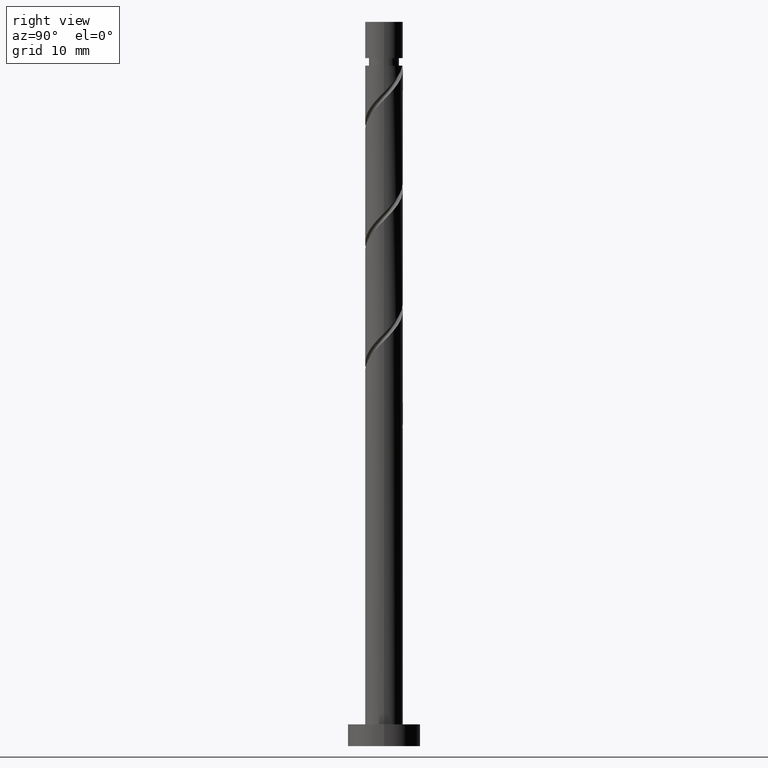
[diagram: clean part render]
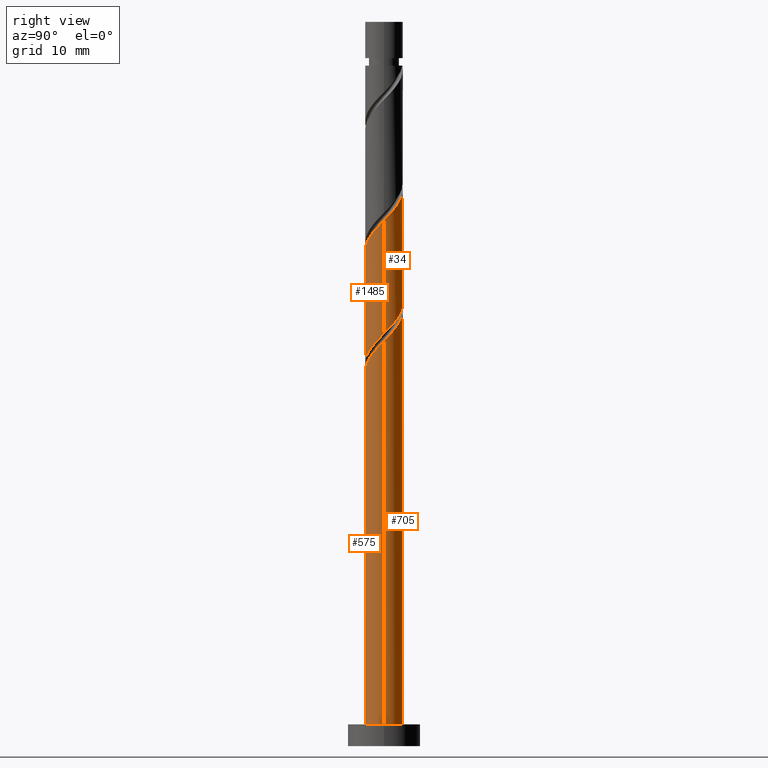
[diagram: same view with one multi-face feature highlighted, each face labeled with its STEP entity id]
A machine part, right view. The highlighted faces form ONE feature: a constant-radius fillet chain: 4 tangent blend faces with common blend radius 2.6 mm. The faces share edges in the B-rep.
Their STEP definitions:
[1] entity #705 (Cylinder):
#4 = AXIS2_PLACEMENT_3D ( 'NONE', #1369, #827, #1165 ) ;
#12 = CARTESIAN_POINT ( 'NONE',  ( -1.947935995195028358, 1.722075886429966785, 46.73729564791317159 ) ) ;
#23 = CARTESIAN_POINT ( 'NONE',  ( -2.600000000000000089, 0.000000000000000000, 100.0000000000000000 ) ) ;
#31 = CARTESIAN_POINT ( 'NONE',  ( -2.600000000000000533, -1.292220606306313636E-15, 48.65703942512414670 ) ) ;
#36 = CARTESIAN_POINT ( 'NONE',  ( -2.600000000000003642, 1.960739359279797311E-15, 64.26199631514663224 ) ) ;
#38 = CARTESIAN_POINT ( 'NONE',  ( -2.600000000000000533, 0.03354435326325422989, 48.62302205119178922 ) ) ;
#42 = CARTESIAN_POINT ( 'NONE',  ( 1.644287553589981909, 2.065549559076047981, 58.31136972198722646 ) ) ;
#49 = EDGE_CURVE ( 'NONE', #118, #182, #826, .T. ) ;
#58 = CARTESIAN_POINT ( 'NONE',  ( 2.419445721942482752, 0.9519886546457586585, 56.92248083309835494 ) ) ;
#78 = CARTESIAN_POINT ( 'NONE',  ( -1.241476438953567740, 2.284455351177424376, 45.81136972198724067 ) ) ;
#104 = EDGE_CURVE ( 'NONE', #182, #795, #152, .T. ) ;
#109 = CARTESIAN_POINT ( 'NONE',  ( -2.600000000000000533, -1.292220606306313636E-15, 48.65703942512414670 ) ) ;
#118 = VERTEX_POINT ( 'NONE', #943 ) ;
#127 = FACE_OUTER_BOUND ( 'NONE', #443, .T. ) ;
#135 = CYLINDRICAL_SURFACE ( 'NONE', #4, 2.600000000000000089 ) ;
#152 = LINE ( 'NONE', #23, #1049 ) ;
#156 = CARTESIAN_POINT ( 'NONE',  ( -2.465329462490475354, 0.8259241135700358116, 63.40396231457984300 ) ) ;
#158 = CARTESIAN_POINT ( 'NONE',  ( -2.465329462490475354, 0.8259241135700358116, 46.73729564791317870 ) ) ;
#162 = CARTESIAN_POINT ( 'NONE',  ( 0.5173934672954431102, 2.548000000000000931, 43.95951787013538592 ) ) ;
#181 = DIRECTION ( 'NONE',  ( 0.000000000000000000, 1.000000000000000000, -1.334402673828313162E-14 ) ) ;
#182 = VERTEX_POINT ( 'NONE', #1404 ) ;
#268 = VERTEX_POINT ( 'NONE', #162 ) ;
#269 = DIRECTION ( 'NONE',  ( 1.000000000000000000, 0.000000000000000000, 0.000000000000000000 ) ) ;
#274 = CARTESIAN_POINT ( 'NONE',  ( -0.5173934672954421110, 2.548000000000004039, 43.95951787013538592 ) ) ;
#279 = CARTESIAN_POINT ( 'NONE',  ( -2.319696757250354846, 1.260628214142603731, 62.94099935161687398 ) ) ;
#301 = CARTESIAN_POINT ( 'NONE',  ( 0.3852765019334445928, 2.571295785602650152, 59.70025861087612640 ) ) ;
#309 = CARTESIAN_POINT ( 'NONE',  ( -1.644287553589979023, 2.065549559076044872, 46.27433268495019547 ) ) ;
#342 = EDGE_CURVE ( 'NONE', #760, #1339, #1314, .T. ) ;
#384 = CARTESIAN_POINT ( 'NONE',  ( -1.357658148454168101, 2.217377809922346454, 44.88544379606130263 ) ) ;
#390 = CARTESIAN_POINT ( 'NONE',  ( -2.587307007084879373, 0.5253750955076291751, 48.12618453680204311 ) ) ;
#391 = DIRECTION ( 'NONE',  ( -0.000000000000000000, -0.000000000000000000, -1.000000000000000000 ) ) ;
#394 = AXIS2_PLACEMENT_3D ( 'NONE', #1393, #917, #269 ) ;
#397 = CARTESIAN_POINT ( 'NONE',  ( 1.241476438953571071, 2.284455351177427040, 58.77433268495020258 ) ) ;
#402 = CARTESIAN_POINT ( 'NONE',  ( 0.000000000000000000, 0.000000000000000000, 43.95951787013542145 ) ) ;
#414 = CARTESIAN_POINT ( 'NONE',  ( 1.947935995195031911, 1.722075886429968783, 57.84840675902427876 ) ) ;
#423 = CARTESIAN_POINT ( 'NONE',  ( -1.748641682767723582, 1.977986047771178146, 62.01507342569094305 ) ) ;
#442 = CARTESIAN_POINT ( 'NONE',  ( 2.600000000000003642, -1.990617292373584730E-15, 55.92866298181330365 ) ) ;
#443 = EDGE_LOOP ( 'NONE', ( #963, #953, #752, #1252, #905, #553, #1268, #630 ) ) ;
#453 =( BOUNDED_CURVE ( )  B_SPLINE_CURVE ( 2, ( #1069, #844, #1084, #859, #58, #1416, #414, #42, #397, #980, #301, #642, #1435, #1092, #987, #423, #876, #279, #156, #618, #36 ),
 .UNSPECIFIED., .F., .T. ) 
 B_SPLINE_CURVE_WITH_KNOTS ( ( 3, 2, 2, 2, 2, 2, 2, 2, 2, 2, 3 ),
 ( 0.1795248053855288128, 0.1805555555555555802, 0.1944444444444444198, 0.2083333333333333703, 0.2222222222222222099, 0.2361111111111111605, 0.2500000000000000000, 0.2638888888888888395, 0.2777777777777777901, 0.2916666666666666297, 0.3045248053855287851 ),
 .UNSPECIFIED. ) 
 CURVE ( )  GEOMETRIC_REPRESENTATION_ITEM ( )  RATIONAL_B_SPLINE_CURVE ( ( 0.9071930855141261407, 0.9080659294509738633, 0.9090909090909141677, 0.8952797754656487417, 0.9090909090909141677, 0.8952797754656487417, 0.9090909090909141677, 0.8952797754656487417, 0.9090909090909141677, 0.8952797754656487417, 0.9090909090909141677, 0.8952797754656487417, 0.9090909090909141677, 0.8952797754656487417, 0.9090909090909141677, 0.8952797754656487417, 0.9090909090909141677, 0.8952797754656487417, 0.9090909090909141677, 0.8963047551055891571, 0.9071930855141259187 ) ) 
 REPRESENTATION_ITEM ( '' )  );
#480 = VECTOR ( 'NONE', #878, 1000.000000000000000 ) ;
#506 = CARTESIAN_POINT ( 'NONE',  ( -2.600000000000002753, 0.4239413667331912716, 47.16541013611433897 ) ) ;
#533 = EDGE_CURVE ( 'NONE', #1245, #760, #453, .T. ) ;
#553 = ORIENTED_EDGE ( 'NONE', *, *, #1137, .T. ) ;
#591 = CARTESIAN_POINT ( 'NONE',  ( -2.251584436800076805, 1.378602213783888697, 47.20025861087611929 ) ) ;
#612 = EDGE_CURVE ( 'NONE', #697, #795, #1465, .T. ) ;
#613 = CARTESIAN_POINT ( 'NONE',  ( -0.9666746141406121762, 2.456769572073515651, 44.42248083309834072 ) ) ;
#618 = CARTESIAN_POINT ( 'NONE',  ( -2.600000000000000533, 0.4239413667331974334, 63.83207680278099616 ) ) ;
#630 = ORIENTED_EDGE ( 'NONE', *, *, #342, .F. ) ;
#642 = CARTESIAN_POINT ( 'NONE',  ( -0.06811232045027318383, 2.639230427926492428, 60.16322157383910252 ) ) ;
#653 = EDGE_CURVE ( 'NONE', #1245, #697, #724, .T. ) ;
#692 = CARTESIAN_POINT ( 'NONE',  ( -2.600000000000003642, 1.960739359279797311E-15, 64.26199631514663224 ) ) ;
#697 = VERTEX_POINT ( 'NONE', #1359 ) ;
#705 = ADVANCED_FACE ( 'NONE', ( #127 ), #135, .T. ) ;
#721 = CARTESIAN_POINT ( 'NONE',  ( -2.034169220009039769, 1.619307130956890495, 45.81136972198725488 ) ) ;
#724 = LINE ( 'NONE', #818, #1228 ) ;
#752 = ORIENTED_EDGE ( 'NONE', *, *, #612, .T. ) ;
#758 = CARTESIAN_POINT ( 'NONE',  ( -2.600000000000000089, 0.000000000000000000, 100.0000000000000000 ) ) ;
#760 = VERTEX_POINT ( 'NONE', #692 ) ;
#795 = VERTEX_POINT ( 'NONE', #1292 ) ;
#817 =( BOUNDED_CURVE ( )  B_SPLINE_CURVE ( 2, ( #31, #38, #1410, #390, #1155, #591, #12, #309, #78, #1190, #1003, #1141, #1363 ),
 .UNSPECIFIED., .F., .T. ) 
 B_SPLINE_CURVE_WITH_KNOTS ( ( 3, 2, 2, 2, 2, 2, 3 ),
 ( 0.9295248053855290626, 0.9305555555555555802, 0.9444444444444444198, 0.9583333333333333703, 0.9722222222222222099, 0.9861111111111111605, 1.000000000000000000 ),
 .UNSPECIFIED. ) 
 CURVE ( )  GEOMETRIC_REPRESENTATION_ITEM ( )  RATIONAL_B_SPLINE_CURVE ( ( 0.9071930855141200345, 0.9080659294509676460, 0.9090909090909077284, 0.8952797754656424134, 0.9090909090909077284, 0.8952797754656424134, 0.9090909090909077284, 0.8952797754656424134, 0.9090909090909077284, 0.8952797754656424134, 0.9090909090909077284, 0.8952797754656424134, 0.9090909090909077284 ) ) 
 REPRESENTATION_ITEM ( '' )  );
#818 = CARTESIAN_POINT ( 'NONE',  ( 2.600000000000000089, 3.184081677783117698E-16, 100.0000000000000000 ) ) ;
#826 =( BOUNDED_CURVE ( )  B_SPLINE_CURVE ( 2, ( #274, #613, #384, #831, #721, #1411, #158, #506, #1177 ),
 .UNSPECIFIED., .F., .T. ) 
 B_SPLINE_CURVE_WITH_KNOTS ( ( 3, 2, 2, 2, 3 ),
 ( 0.000000000000000000, 0.01388888888888883955, 0.02777777777777779011, 0.04166666666666662966, 0.05452480538552897937 ),
 .UNSPECIFIED. ) 
 CURVE ( )  GEOMETRIC_REPRESENTATION_ITEM ( )  RATIONAL_B_SPLINE_CURVE ( ( 0.9090909090909141677, 0.8952797754656487417, 0.9090909090909141677, 0.8952797754656487417, 0.9090909090909141677, 0.8952797754656487417, 0.9090909090909141677, 0.8963047551055888240, 0.9071930855141263628 ) ) 
 REPRESENTATION_ITEM ( '' )  );
#827 = DIRECTION ( 'NONE',  ( -0.000000000000000000, -0.000000000000000000, -1.000000000000000000 ) ) ;
#831 = CARTESIAN_POINT ( 'NONE',  ( -1.748641682767723582, 1.977986047771178146, 45.34840675902426455 ) ) ;
#844 = CARTESIAN_POINT ( 'NONE',  ( 2.600000000000003642, 0.03354435326324555627, 55.96268035574565403 ) ) ;
#859 = CARTESIAN_POINT ( 'NONE',  ( 2.587307007084882926, 0.5253750955076290641, 56.45951787013540013 ) ) ;
#876 = CARTESIAN_POINT ( 'NONE',  ( -2.034169220009039769, 1.619307130956890495, 62.47803638865390496 ) ) ;
#878 = DIRECTION ( 'NONE',  ( -0.000000000000000000, -0.000000000000000000, -1.000000000000000000 ) ) ;
#905 = ORIENTED_EDGE ( 'NONE', *, *, #49, .F. ) ;
#917 = DIRECTION ( 'NONE',  ( 0.000000000000000000, 0.000000000000000000, 1.000000000000000000 ) ) ;
#943 = CARTESIAN_POINT ( 'NONE',  ( -0.5173934672954421110, 2.548000000000004039, 43.95951787013538592 ) ) ;
#947 = CIRCLE ( 'NONE', #992, 2.600000000000000089 ) ;
#953 = ORIENTED_EDGE ( 'NONE', *, *, #653, .T. ) ;
#963 = ORIENTED_EDGE ( 'NONE', *, *, #533, .F. ) ;
#980 = CARTESIAN_POINT ( 'NONE',  ( 0.8386653243171597882, 2.503361143278807432, 59.23729564791315028 ) ) ;
#987 = CARTESIAN_POINT ( 'NONE',  ( -1.357658148454168101, 2.217377809922346454, 61.55211046272798825 ) ) ;
#992 = AXIS2_PLACEMENT_3D ( 'NONE', #402, #1104, #181 ) ;
#1003 = CARTESIAN_POINT ( 'NONE',  ( -0.3852765019334414842, 2.571295785602647044, 44.88544379606130974 ) ) ;
#1049 = VECTOR ( 'NONE', #391, 1000.000000000000000 ) ;
#1069 = CARTESIAN_POINT ( 'NONE',  ( 2.600000000000003642, -1.990617292373584730E-15, 55.92866298181330365 ) ) ;
#1084 = CARTESIAN_POINT ( 'NONE',  ( 2.599134587407737840, 0.06707754125508115506, 55.99655490717243822 ) ) ;
#1092 = CARTESIAN_POINT ( 'NONE',  ( -0.9666746141406121762, 2.456769572073515651, 61.08914749976502634 ) ) ;
#1104 = DIRECTION ( 'NONE',  ( -2.962969145211131058E-30, -1.334402673828313635E-14, -1.000000000000000000 ) ) ;
#1137 = EDGE_CURVE ( 'NONE', #118, #268, #947, .T. ) ;
#1141 = CARTESIAN_POINT ( 'NONE',  ( 0.06811232045027358628, 2.639230427926489764, 44.42248083309834072 ) ) ;
#1155 = CARTESIAN_POINT ( 'NONE',  ( -2.419445721942478755, 0.9519886546457586585, 47.66322157383908120 ) ) ;
#1165 = DIRECTION ( 'NONE',  ( -1.000000000000000000, 0.000000000000000000, 0.000000000000000000 ) ) ;
#1173 = DIRECTION ( 'NONE',  ( -0.000000000000000000, -0.000000000000000000, -1.000000000000000000 ) ) ;
#1177 = CARTESIAN_POINT ( 'NONE',  ( -2.600000000000003642, 1.960739359279797311E-15, 47.59532964847995373 ) ) ;
#1190 = CARTESIAN_POINT ( 'NONE',  ( -0.8386653243171563465, 2.503361143278803880, 45.34840675902426455 ) ) ;
#1228 = VECTOR ( 'NONE', #1173, 1000.000000000000000 ) ;
#1245 = VERTEX_POINT ( 'NONE', #442 ) ;
#1252 = ORIENTED_EDGE ( 'NONE', *, *, #104, .F. ) ;
#1268 = ORIENTED_EDGE ( 'NONE', *, *, #1328, .F. ) ;
#1292 = CARTESIAN_POINT ( 'NONE',  ( -2.600000000000000089, 0.000000000000000000, 3.000000000000000000 ) ) ;
#1314 = LINE ( 'NONE', #758, #480 ) ;
#1328 = EDGE_CURVE ( 'NONE', #1339, #268, #817, .T. ) ;
#1339 = VERTEX_POINT ( 'NONE', #109 ) ;
#1359 = CARTESIAN_POINT ( 'NONE',  ( 2.600000000000000089, 3.184081677783117698E-16, 3.000000000000000000 ) ) ;
#1363 = CARTESIAN_POINT ( 'NONE',  ( 0.5173934672954431102, 2.548000000000000931, 43.95951787013537881 ) ) ;
#1369 = CARTESIAN_POINT ( 'NONE',  ( 0.000000000000000000, 0.000000000000000000, 100.0000000000000000 ) ) ;
#1393 = CARTESIAN_POINT ( 'NONE',  ( 0.000000000000000000, 0.000000000000000000, 3.000000000000000000 ) ) ;
#1404 = CARTESIAN_POINT ( 'NONE',  ( -2.600000000000003642, 1.960739359279797311E-15, 47.59532964847995373 ) ) ;
#1410 = CARTESIAN_POINT ( 'NONE',  ( -2.599134587407734731, 0.06707754125508150200, 48.58914749976501213 ) ) ;
#1411 = CARTESIAN_POINT ( 'NONE',  ( -2.319696757250354846, 1.260628214142603731, 46.27433268495020258 ) ) ;
#1416 = CARTESIAN_POINT ( 'NONE',  ( 2.251584436800082134, 1.378602213783888475, 57.38544379606130974 ) ) ;
#1435 = CARTESIAN_POINT ( 'NONE',  ( -0.5173934672954421110, 2.548000000000004039, 60.62618453680206443 ) ) ;
#1465 = CIRCLE ( 'NONE', #394, 2.600000000000000089 ) ;
[2] entity #575 (Cylinder):
#9 = CARTESIAN_POINT ( 'NONE',  ( -1.947935995195032133, -1.722075886429968117, 49.51507342569093595 ) ) ;
#23 = CARTESIAN_POINT ( 'NONE',  ( -2.600000000000000089, 0.000000000000000000, 100.0000000000000000 ) ) ;
#76 = DIRECTION ( 'NONE',  ( 1.000000000000000000, 0.000000000000000000, 0.000000000000000000 ) ) ;
#104 = EDGE_CURVE ( 'NONE', #182, #795, #152, .T. ) ;
#152 = LINE ( 'NONE', #23, #1049 ) ;
#176 = AXIS2_PLACEMENT_3D ( 'NONE', #1250, #212, #76 ) ;
#182 = VERTEX_POINT ( 'NONE', #1404 ) ;
#185 = CARTESIAN_POINT ( 'NONE',  ( 2.319696757250354846, -1.260628214142604619, 54.60766601828352407 ) ) ;
#197 = ORIENTED_EDGE ( 'NONE', *, *, #653, .F. ) ;
#212 = DIRECTION ( 'NONE',  ( 0.000000000000000000, 0.000000000000000000, 1.000000000000000000 ) ) ;
#216 = EDGE_LOOP ( 'NONE', ( #197, #305, #1484, #467 ) ) ;
#285 = CARTESIAN_POINT ( 'NONE',  ( -0.3852765019334429275, -2.571295785602650152, 51.36692527754281201 ) ) ;
#305 = ORIENTED_EDGE ( 'NONE', *, *, #510, .F. ) ;
#391 = DIRECTION ( 'NONE',  ( -0.000000000000000000, -0.000000000000000000, -1.000000000000000000 ) ) ;
#406 = CARTESIAN_POINT ( 'NONE',  ( 2.600000000000003642, -1.990617292373584730E-15, 55.92866298181330365 ) ) ;
#438 = AXIS2_PLACEMENT_3D ( 'NONE', #698, #1149, #1159 ) ;
#442 = CARTESIAN_POINT ( 'NONE',  ( 2.600000000000003642, -1.990617292373584730E-15, 55.92866298181330365 ) ) ;
#467 = ORIENTED_EDGE ( 'NONE', *, *, #1451, .T. ) ;
#510 = EDGE_CURVE ( 'NONE', #182, #1245, #670, .T. ) ;
#511 = CARTESIAN_POINT ( 'NONE',  ( 2.465329462490475354, -0.8259241135700365888, 55.07062898124651440 ) ) ;
#575 = ADVANCED_FACE ( 'NONE', ( #933 ), #924, .T. ) ;
#588 = CARTESIAN_POINT ( 'NONE',  ( -2.251584436800082134, -1.378602213783890029, 49.05211046272798114 ) ) ;
#626 = CARTESIAN_POINT ( 'NONE',  ( 0.06811232045027239279, -2.639230427926493316, 51.82988824050575971 ) ) ;
#653 = EDGE_CURVE ( 'NONE', #1245, #697, #724, .T. ) ;
#670 =( BOUNDED_CURVE ( )  B_SPLINE_CURVE ( 2, ( #808, #1061, #834, #926, #1150, #588, #9, #1195, #1311, #1293, #285, #626, #756, #1408, #972, #1189, #868, #185, #511, #1076, #406 ),
 .UNSPECIFIED., .F., .T. ) 
 B_SPLINE_CURVE_WITH_KNOTS ( ( 3, 2, 2, 2, 2, 2, 2, 2, 2, 2, 3 ),
 ( 0.05452480538552897937, 0.05555555555555558023, 0.06944444444444441977, 0.08333333333333337034, 0.09722222222222220989, 0.1111111111111111605, 0.1250000000000000000, 0.1388888888888888395, 0.1527777777777777901, 0.1666666666666666297, 0.1795248053855288128 ),
 .UNSPECIFIED. ) 
 CURVE ( )  GEOMETRIC_REPRESENTATION_ITEM ( )  RATIONAL_B_SPLINE_CURVE ( ( 0.9071930855141263628, 0.9080659294509740853, 0.9090909090909141677, 0.8952797754656487417, 0.9090909090909141677, 0.8952797754656487417, 0.9090909090909141677, 0.8952797754656487417, 0.9090909090909141677, 0.8952797754656487417, 0.9090909090909141677, 0.8952797754656487417, 0.9090909090909141677, 0.8952797754656487417, 0.9090909090909141677, 0.8952797754656487417, 0.9090909090909141677, 0.8952797754656487417, 0.9090909090909141677, 0.8963047551055891571, 0.9071930855141261407 ) ) 
 REPRESENTATION_ITEM ( '' )  );
#697 = VERTEX_POINT ( 'NONE', #1359 ) ;
#698 = CARTESIAN_POINT ( 'NONE',  ( 0.000000000000000000, 0.000000000000000000, 100.0000000000000000 ) ) ;
#724 = LINE ( 'NONE', #818, #1228 ) ;
#756 = CARTESIAN_POINT ( 'NONE',  ( 0.5173934672954424441, -2.548000000000004039, 52.29285120346872162 ) ) ;
#795 = VERTEX_POINT ( 'NONE', #1292 ) ;
#808 = CARTESIAN_POINT ( 'NONE',  ( -2.600000000000003642, 1.960739359279797311E-15, 47.59532964847995373 ) ) ;
#818 = CARTESIAN_POINT ( 'NONE',  ( 2.600000000000000089, 3.184081677783117698E-16, 100.0000000000000000 ) ) ;
#834 = CARTESIAN_POINT ( 'NONE',  ( -2.599134587407737840, -0.06707754125508093301, 47.66322157383908831 ) ) ;
#868 = CARTESIAN_POINT ( 'NONE',  ( 2.034169220009039769, -1.619307130956890495, 54.14470305532056926 ) ) ;
#924 = CYLINDRICAL_SURFACE ( 'NONE', #438, 2.600000000000000089 ) ;
#926 = CARTESIAN_POINT ( 'NONE',  ( -2.587307007084882926, -0.5253750955076293971, 48.12618453680205732 ) ) ;
#933 = FACE_OUTER_BOUND ( 'NONE', #216, .T. ) ;
#972 = CARTESIAN_POINT ( 'NONE',  ( 1.357658148454168101, -2.217377809922346454, 53.21877712939465255 ) ) ;
#1049 = VECTOR ( 'NONE', #391, 1000.000000000000000 ) ;
#1061 = CARTESIAN_POINT ( 'NONE',  ( -2.600000000000003642, -0.03354435326325089922, 47.62934702241230411 ) ) ;
#1076 = CARTESIAN_POINT ( 'NONE',  ( 2.600000000000000533, -0.4239413667331979885, 55.49874346944766756 ) ) ;
#1149 = DIRECTION ( 'NONE',  ( -0.000000000000000000, -0.000000000000000000, -1.000000000000000000 ) ) ;
#1150 = CARTESIAN_POINT ( 'NONE',  ( -2.419445721942482308, -0.9519886546457594356, 48.58914749976501923 ) ) ;
#1159 = DIRECTION ( 'NONE',  ( -1.000000000000000000, 0.000000000000000000, 0.000000000000000000 ) ) ;
#1160 = CIRCLE ( 'NONE', #176, 2.600000000000000089 ) ;
#1173 = DIRECTION ( 'NONE',  ( -0.000000000000000000, -0.000000000000000000, -1.000000000000000000 ) ) ;
#1189 = CARTESIAN_POINT ( 'NONE',  ( 1.748641682767723582, -1.977986047771178590, 53.68174009235762156 ) ) ;
#1195 = CARTESIAN_POINT ( 'NONE',  ( -1.644287553589981687, -2.065549559076047981, 49.97803638865391207 ) ) ;
#1228 = VECTOR ( 'NONE', #1173, 1000.000000000000000 ) ;
#1245 = VERTEX_POINT ( 'NONE', #442 ) ;
#1250 = CARTESIAN_POINT ( 'NONE',  ( 0.000000000000000000, 0.000000000000000000, 3.000000000000000000 ) ) ;
#1292 = CARTESIAN_POINT ( 'NONE',  ( -2.600000000000000089, 0.000000000000000000, 3.000000000000000000 ) ) ;
#1293 = CARTESIAN_POINT ( 'NONE',  ( -0.8386653243171581229, -2.503361143278807432, 50.90396231457984300 ) ) ;
#1311 = CARTESIAN_POINT ( 'NONE',  ( -1.241476438953570627, -2.284455351177427485, 50.44099935161688109 ) ) ;
#1359 = CARTESIAN_POINT ( 'NONE',  ( 2.600000000000000089, 3.184081677783117698E-16, 3.000000000000000000 ) ) ;
#1404 = CARTESIAN_POINT ( 'NONE',  ( -2.600000000000003642, 1.960739359279797311E-15, 47.59532964847995373 ) ) ;
#1408 = CARTESIAN_POINT ( 'NONE',  ( 0.9666746141406117321, -2.456769572073515651, 52.75581416643166932 ) ) ;
#1451 = EDGE_CURVE ( 'NONE', #795, #697, #1160, .T. ) ;
#1484 = ORIENTED_EDGE ( 'NONE', *, *, #104, .T. ) ;
[3] entity #1485 (Cylinder):
#3 = ORIENTED_EDGE ( 'NONE', *, *, #488, .F. ) ;
#17 = CARTESIAN_POINT ( 'NONE',  ( -1.644287553589981687, -2.065549559076047981, 66.64470305532056216 ) ) ;
#109 = CARTESIAN_POINT ( 'NONE',  ( -2.600000000000000533, -1.292220606306313636E-15, 48.65703942512414670 ) ) ;
#128 = CARTESIAN_POINT ( 'NONE',  ( -2.419445721942482308, -0.9519886546457594356, 65.25581416643167643 ) ) ;
#130 = FACE_OUTER_BOUND ( 'NONE', #1120, .T. ) ;
#148 = CARTESIAN_POINT ( 'NONE',  ( 2.600000000000002309, -0.4239413667331936031, 72.16541013611434607 ) ) ;
#150 = CYLINDRICAL_SURFACE ( 'NONE', #1019, 2.600000000000000089 ) ;
#200 =( BOUNDED_CURVE ( )  B_SPLINE_CURVE ( 2, ( #896, #222, #323, #674, #346, #471, #1475, #911, #573, #1028, #928, #1138, #1226, #1351, #770, #551, #335, #793, #440, #1251, #802 ),
 .UNSPECIFIED., .F., .T. ) 
 B_SPLINE_CURVE_WITH_KNOTS ( ( 3, 2, 2, 2, 2, 2, 2, 2, 2, 2, 3 ),
 ( 0.8045248053855290626, 0.8055555555555555802, 0.8194444444444444198, 0.8333333333333333703, 0.8472222222222222099, 0.8611111111111111605, 0.8750000000000000000, 0.8888888888888888395, 0.9027777777777777901, 0.9166666666666666297, 0.9295248053855290626 ),
 .UNSPECIFIED. ) 
 CURVE ( )  GEOMETRIC_REPRESENTATION_ITEM ( )  RATIONAL_B_SPLINE_CURVE ( ( 0.9071930855141200345, 0.9080659294509676460, 0.9090909090909077284, 0.8952797754656424134, 0.9090909090909077284, 0.8952797754656424134, 0.9090909090909077284, 0.8952797754656424134, 0.9090909090909077284, 0.8952797754656424134, 0.9090909090909077284, 0.8952797754656424134, 0.9090909090909077284, 0.8952797754656424134, 0.9090909090909077284, 0.8952797754656424134, 0.9090909090909077284, 0.8952797754656424134, 0.9090909090909077284, 0.8963047551055824957, 0.9071930855141200345 ) ) 
 REPRESENTATION_ITEM ( '' )  );
#206 = LINE ( 'NONE', #663, #1275 ) ;
#222 = CARTESIAN_POINT ( 'NONE',  ( 2.600000000000000533, -0.03354435326325524297, 56.95635538452513202 ) ) ;
#240 = DIRECTION ( 'NONE',  ( -0.000000000000000000, -0.000000000000000000, -1.000000000000000000 ) ) ;
#245 = CARTESIAN_POINT ( 'NONE',  ( -2.600000000000003642, 1.960739359279797311E-15, 64.26199631514663224 ) ) ;
#323 = CARTESIAN_POINT ( 'NONE',  ( 2.599134587407734731, -0.06707754125508245957, 56.92248083309836915 ) ) ;
#335 = CARTESIAN_POINT ( 'NONE',  ( -2.034169220009037105, -1.619307130956887830, 50.44099935161688109 ) ) ;
#342 = EDGE_CURVE ( 'NONE', #760, #1339, #1314, .T. ) ;
#346 = CARTESIAN_POINT ( 'NONE',  ( 2.419445721942478755, -0.9519886546457584364, 55.99655490717243111 ) ) ;
#348 = VERTEX_POINT ( 'NONE', #1214 ) ;
#363 =( BOUNDED_CURVE ( )  B_SPLINE_CURVE ( 2, ( #245, #1401, #597, #1167, #128, #1047, #1288, #17, #828, #603, #1054, #1174, #609, #486, #699, #1387, #367, #491, #1394, #148, #693 ),
 .UNSPECIFIED., .F., .T. ) 
 B_SPLINE_CURVE_WITH_KNOTS ( ( 3, 2, 2, 2, 2, 2, 2, 2, 2, 2, 3 ),
 ( 0.3045248053855287851, 0.3055555555555555802, 0.3194444444444444198, 0.3333333333333333703, 0.3472222222222222099, 0.3611111111111111605, 0.3750000000000000000, 0.3888888888888888395, 0.4027777777777777901, 0.4166666666666666297, 0.4295248053855289516 ),
 .UNSPECIFIED. ) 
 CURVE ( )  GEOMETRIC_REPRESENTATION_ITEM ( )  RATIONAL_B_SPLINE_CURVE ( ( 0.9071930855141259187, 0.9080659294509737522, 0.9090909090909141677, 0.8952797754656487417, 0.9090909090909141677, 0.8952797754656487417, 0.9090909090909141677, 0.8952797754656487417, 0.9090909090909141677, 0.8952797754656487417, 0.9090909090909141677, 0.8952797754656487417, 0.9090909090909141677, 0.8952797754656487417, 0.9090909090909141677, 0.8952797754656487417, 0.9090909090909141677, 0.8952797754656487417, 0.9090909090909141677, 0.8963047551055889350, 0.9071930855141262517 ) ) 
 REPRESENTATION_ITEM ( '' )  );
#367 = CARTESIAN_POINT ( 'NONE',  ( 2.034169220009039769, -1.619307130956890495, 70.81136972198723356 ) ) ;
#440 = CARTESIAN_POINT ( 'NONE',  ( -2.465329462490470469, -0.8259241135700331471, 49.51507342569095016 ) ) ;
#471 = CARTESIAN_POINT ( 'NONE',  ( 2.251584436800076805, -1.378602213783889585, 55.53359194420946210 ) ) ;
#480 = VECTOR ( 'NONE', #878, 1000.000000000000000 ) ;
#486 = CARTESIAN_POINT ( 'NONE',  ( 0.9666746141406117321, -2.456769572073515651, 69.42248083309833362 ) ) ;
#488 = EDGE_CURVE ( 'NONE', #760, #348, #363, .T. ) ;
#491 = CARTESIAN_POINT ( 'NONE',  ( 2.319696757250354846, -1.260628214142604619, 71.27433268495022389 ) ) ;
#499 = CARTESIAN_POINT ( 'NONE',  ( 0.000000000000000000, 0.000000000000000000, 100.0000000000000000 ) ) ;
#546 = ORIENTED_EDGE ( 'NONE', *, *, #342, .T. ) ;
#551 = CARTESIAN_POINT ( 'NONE',  ( -1.748641682767721361, -1.977986047771174816, 50.90396231457982879 ) ) ;
#573 = CARTESIAN_POINT ( 'NONE',  ( 1.241476438953567740, -2.284455351177424376, 54.14470305532058347 ) ) ;
#597 = CARTESIAN_POINT ( 'NONE',  ( -2.599134587407737840, -0.06707754125508093301, 64.32988824050576682 ) ) ;
#603 = CARTESIAN_POINT ( 'NONE',  ( -0.8386653243171581229, -2.503361143278807432, 67.57062898124650019 ) ) ;
#609 = CARTESIAN_POINT ( 'NONE',  ( 0.5173934672954424441, -2.548000000000004039, 68.95951787013538592 ) ) ;
#611 = DIRECTION ( 'NONE',  ( -1.000000000000000000, 0.000000000000000000, 0.000000000000000000 ) ) ;
#663 = CARTESIAN_POINT ( 'NONE',  ( 2.600000000000000089, 3.184081677783117698E-16, 100.0000000000000000 ) ) ;
#674 = CARTESIAN_POINT ( 'NONE',  ( 2.587307007084879373, -0.5253750955076295082, 56.45951787013538592 ) ) ;
#692 = CARTESIAN_POINT ( 'NONE',  ( -2.600000000000003642, 1.960739359279797311E-15, 64.26199631514663224 ) ) ;
#693 = CARTESIAN_POINT ( 'NONE',  ( 2.600000000000003642, -1.990617292373584730E-15, 72.59532964847997505 ) ) ;
#699 = CARTESIAN_POINT ( 'NONE',  ( 1.357658148454168101, -2.217377809922346454, 69.88544379606133816 ) ) ;
#758 = CARTESIAN_POINT ( 'NONE',  ( -2.600000000000000089, 0.000000000000000000, 100.0000000000000000 ) ) ;
#760 = VERTEX_POINT ( 'NONE', #692 ) ;
#770 = CARTESIAN_POINT ( 'NONE',  ( -1.357658148454167213, -2.217377809922342013, 51.36692527754279780 ) ) ;
#793 = CARTESIAN_POINT ( 'NONE',  ( -2.319696757250351737, -1.260628214142601289, 49.97803638865390496 ) ) ;
#802 = CARTESIAN_POINT ( 'NONE',  ( -2.600000000000000533, -1.292220606306313636E-15, 48.65703942512414670 ) ) ;
#828 = CARTESIAN_POINT ( 'NONE',  ( -1.241476438953570627, -2.284455351177427485, 67.10766601828355249 ) ) ;
#838 = VERTEX_POINT ( 'NONE', #1082 ) ;
#878 = DIRECTION ( 'NONE',  ( -0.000000000000000000, -0.000000000000000000, -1.000000000000000000 ) ) ;
#896 = CARTESIAN_POINT ( 'NONE',  ( 2.600000000000000533, 2.502276896604711082E-16, 56.99037275845748240 ) ) ;
#911 = CARTESIAN_POINT ( 'NONE',  ( 1.644287553589978579, -2.065549559076044872, 54.60766601828352407 ) ) ;
#928 = CARTESIAN_POINT ( 'NONE',  ( 0.3852765019334413732, -2.571295785602647044, 53.21877712939464544 ) ) ;
#1019 = AXIS2_PLACEMENT_3D ( 'NONE', #499, #1176, #611 ) ;
#1028 = CARTESIAN_POINT ( 'NONE',  ( 0.8386653243171557914, -2.503361143278803880, 53.68174009235761446 ) ) ;
#1047 = CARTESIAN_POINT ( 'NONE',  ( -2.251584436800082134, -1.378602213783890029, 65.71877712939465255 ) ) ;
#1054 = CARTESIAN_POINT ( 'NONE',  ( -0.3852765019334429275, -2.571295785602650152, 68.03359194420947631 ) ) ;
#1082 = CARTESIAN_POINT ( 'NONE',  ( 2.600000000000000533, 2.502276896604711082E-16, 56.99037275845748951 ) ) ;
#1112 = ORIENTED_EDGE ( 'NONE', *, *, #1357, .F. ) ;
#1120 = EDGE_LOOP ( 'NONE', ( #1112, #3, #546, #1272 ) ) ;
#1138 = CARTESIAN_POINT ( 'NONE',  ( -0.06811232045027455773, -2.639230427926489764, 52.75581416643167643 ) ) ;
#1167 = CARTESIAN_POINT ( 'NONE',  ( -2.587307007084882926, -0.5253750955076293971, 64.79285120346874294 ) ) ;
#1174 = CARTESIAN_POINT ( 'NONE',  ( 0.06811232045027239279, -2.639230427926493316, 68.49655490717245243 ) ) ;
#1176 = DIRECTION ( 'NONE',  ( -0.000000000000000000, -0.000000000000000000, -1.000000000000000000 ) ) ;
#1214 = CARTESIAN_POINT ( 'NONE',  ( 2.600000000000003642, -1.990617292373584730E-15, 72.59532964847996084 ) ) ;
#1226 = CARTESIAN_POINT ( 'NONE',  ( -0.5173934672954426661, -2.548000000000000931, 52.29285120346872873 ) ) ;
#1251 = CARTESIAN_POINT ( 'NONE',  ( -2.600000000000000533, -0.4239413667331872193, 49.08695893748976857 ) ) ;
#1257 = EDGE_CURVE ( 'NONE', #838, #1339, #200, .T. ) ;
#1272 = ORIENTED_EDGE ( 'NONE', *, *, #1257, .F. ) ;
#1275 = VECTOR ( 'NONE', #240, 1000.000000000000000 ) ;
#1288 = CARTESIAN_POINT ( 'NONE',  ( -1.947935995195032133, -1.722075886429968117, 66.18174009235762867 ) ) ;
#1314 = LINE ( 'NONE', #758, #480 ) ;
#1339 = VERTEX_POINT ( 'NONE', #109 ) ;
#1351 = CARTESIAN_POINT ( 'NONE',  ( -0.9666746141406119541, -2.456769572073511210, 51.82988824050575971 ) ) ;
#1357 = EDGE_CURVE ( 'NONE', #348, #838, #206, .T. ) ;
#1387 = CARTESIAN_POINT ( 'NONE',  ( 1.748641682767723582, -1.977986047771178590, 70.34840675902425744 ) ) ;
#1394 = CARTESIAN_POINT ( 'NONE',  ( 2.465329462490475354, -0.8259241135700365888, 71.73729564791315738 ) ) ;
#1401 = CARTESIAN_POINT ( 'NONE',  ( -2.600000000000003197, -0.03354435326324456401, 64.29601368907898973 ) ) ;
#1475 = CARTESIAN_POINT ( 'NONE',  ( 1.947935995195027692, -1.722075886429967229, 55.07062898124651440 ) ) ;
#1485 = ADVANCED_FACE ( 'NONE', ( #130 ), #150, .T. ) ;
[4] entity #34 (Cylinder):
#28 = CARTESIAN_POINT ( 'NONE',  ( -0.9666746141406121762, 2.456769572073515651, 77.75581416643167643 ) ) ;
#34 = ADVANCED_FACE ( 'NONE', ( #256 ), #1191, .T. ) ;
#37 = CARTESIAN_POINT ( 'NONE',  ( 2.034169220009037549, 1.619307130956887164, 58.77433268495019547 ) ) ;
#45 = CARTESIAN_POINT ( 'NONE',  ( 1.748641682767722250, 1.977986047771173483, 59.23729564791314317 ) ) ;
#88 = AXIS2_PLACEMENT_3D ( 'NONE', #836, #266, #1197 ) ;
#123 = CARTESIAN_POINT ( 'NONE',  ( -2.587307007084879373, 0.5253750955076291751, 64.79285120346871452 ) ) ;
#161 = CARTESIAN_POINT ( 'NONE',  ( 2.465329462490471357, 0.8259241135700340353, 57.84840675902427165 ) ) ;
#167 = VECTOR ( 'NONE', #717, 1000.000000000000000 ) ;
#171 = CARTESIAN_POINT ( 'NONE',  ( 2.600000000000000533, 2.502276896604711082E-16, 56.99037275845748240 ) ) ;
#190 = ORIENTED_EDGE ( 'NONE', *, *, #1115, .F. ) ;
#206 = LINE ( 'NONE', #663, #1275 ) ;
#235 = CARTESIAN_POINT ( 'NONE',  ( 2.251584436800082134, 1.378602213783888475, 74.05211046272796693 ) ) ;
#239 = CARTESIAN_POINT ( 'NONE',  ( 1.357658148454168101, 2.217377809922341125, 59.70025861087613350 ) ) ;
#240 = DIRECTION ( 'NONE',  ( -0.000000000000000000, -0.000000000000000000, -1.000000000000000000 ) ) ;
#248 = CARTESIAN_POINT ( 'NONE',  ( -1.241476438953567740, 2.284455351177424376, 62.47803638865391207 ) ) ;
#252 = CARTESIAN_POINT ( 'NONE',  ( -2.600000000000000089, 0.000000000000000000, 100.0000000000000000 ) ) ;
#253 = CARTESIAN_POINT ( 'NONE',  ( -2.465329462490475354, 0.8259241135700358116, 80.07062898124648598 ) ) ;
#256 = FACE_OUTER_BOUND ( 'NONE', #856, .T. ) ;
#264 =( BOUNDED_CURVE ( )  B_SPLINE_CURVE ( 2, ( #1373, #1154, #720, #123, #355, #803, #1169, #1476, #248, #479, #912, #1383, #821, #1260, #239, #45, #37, #505, #161, #1332, #171 ),
 .UNSPECIFIED., .F., .T. ) 
 B_SPLINE_CURVE_WITH_KNOTS ( ( 3, 2, 2, 2, 2, 2, 2, 2, 2, 2, 3 ),
 ( 0.6795248053855290626, 0.6805555555555555802, 0.6944444444444444198, 0.7083333333333333703, 0.7222222222222222099, 0.7361111111111111605, 0.7500000000000000000, 0.7638888888888888395, 0.7777777777777777901, 0.7916666666666666297, 0.8045248053855290626 ),
 .UNSPECIFIED. ) 
 CURVE ( )  GEOMETRIC_REPRESENTATION_ITEM ( )  RATIONAL_B_SPLINE_CURVE ( ( 0.9071930855141200345, 0.9080659294509676460, 0.9090909090909077284, 0.8952797754656424134, 0.9090909090909077284, 0.8952797754656424134, 0.9090909090909077284, 0.8952797754656424134, 0.9090909090909077284, 0.8952797754656424134, 0.9090909090909077284, 0.8952797754656424134, 0.9090909090909077284, 0.8952797754656424134, 0.9090909090909077284, 0.8952797754656424134, 0.9090909090909077284, 0.8952797754656424134, 0.9090909090909077284, 0.8963047551055824957, 0.9071930855141200345 ) ) 
 REPRESENTATION_ITEM ( '' )  );
#266 = DIRECTION ( 'NONE',  ( -0.000000000000000000, -0.000000000000000000, -1.000000000000000000 ) ) ;
#348 = VERTEX_POINT ( 'NONE', #1214 ) ;
#351 = CARTESIAN_POINT ( 'NONE',  ( -2.600000000000003197, 0.4239413667331888846, 80.49874346944767467 ) ) ;
#355 = CARTESIAN_POINT ( 'NONE',  ( -2.419445721942478755, 0.9519886546457586585, 64.32988824050575261 ) ) ;
#375 = CARTESIAN_POINT ( 'NONE',  ( -2.600000000000000533, -1.292220606306313636E-15, 65.32370609179082521 ) ) ;
#421 = EDGE_CURVE ( 'NONE', #348, #767, #462, .T. ) ;
#462 =( BOUNDED_CURVE ( )  B_SPLINE_CURVE ( 2, ( #518, #686, #1481, #1256, #1349, #235, #976, #1430, #718, #1370, #945, #1041, #1034, #28, #955, #1161, #1379, #1282, #253, #351, #725 ),
 .UNSPECIFIED., .F., .T. ) 
 B_SPLINE_CURVE_WITH_KNOTS ( ( 3, 2, 2, 2, 2, 2, 2, 2, 2, 2, 3 ),
 ( 0.4295248053855289516, 0.4305555555555555802, 0.4444444444444444198, 0.4583333333333333703, 0.4722222222222222099, 0.4861111111111111605, 0.5000000000000000000, 0.5138888888888888395, 0.5277777777777777901, 0.5416666666666667407, 0.5545248053855290626 ),
 .UNSPECIFIED. ) 
 CURVE ( )  GEOMETRIC_REPRESENTATION_ITEM ( )  RATIONAL_B_SPLINE_CURVE ( ( 0.9071930855141262517, 0.9080659294509739743, 0.9090909090909141677, 0.8952797754656487417, 0.9090909090909141677, 0.8952797754656487417, 0.9090909090909141677, 0.8952797754656487417, 0.9090909090909141677, 0.8952797754656487417, 0.9090909090909141677, 0.8952797754656487417, 0.9090909090909141677, 0.8952797754656487417, 0.9090909090909141677, 0.8952797754656487417, 0.9090909090909141677, 0.8952797754656487417, 0.9090909090909141677, 0.8963047551055888240, 0.9071930855141263628 ) ) 
 REPRESENTATION_ITEM ( '' )  );
#479 = CARTESIAN_POINT ( 'NONE',  ( -0.8386653243171563465, 2.503361143278803880, 62.01507342569092174 ) ) ;
#505 = CARTESIAN_POINT ( 'NONE',  ( 2.319696757250351737, 1.260628214142601289, 58.31136972198722646 ) ) ;
#518 = CARTESIAN_POINT ( 'NONE',  ( 2.600000000000003642, -1.990617292373584730E-15, 72.59532964847997505 ) ) ;
#604 = EDGE_CURVE ( 'NONE', #767, #639, #1378, .T. ) ;
#639 = VERTEX_POINT ( 'NONE', #375 ) ;
#663 = CARTESIAN_POINT ( 'NONE',  ( 2.600000000000000089, 3.184081677783117698E-16, 100.0000000000000000 ) ) ;
#686 = CARTESIAN_POINT ( 'NONE',  ( 2.600000000000003642, 0.03354435326325007349, 72.62934702241230411 ) ) ;
#717 = DIRECTION ( 'NONE',  ( -0.000000000000000000, -0.000000000000000000, -1.000000000000000000 ) ) ;
#718 = CARTESIAN_POINT ( 'NONE',  ( 1.241476438953571071, 2.284455351177427040, 75.44099935161686687 ) ) ;
#720 = CARTESIAN_POINT ( 'NONE',  ( -2.599134587407734731, 0.06707754125508150200, 65.25581416643167643 ) ) ;
#723 = ORIENTED_EDGE ( 'NONE', *, *, #1357, .T. ) ;
#725 = CARTESIAN_POINT ( 'NONE',  ( -2.600000000000003642, -1.378119663950943244E-15, 80.92866298181330365 ) ) ;
#767 = VERTEX_POINT ( 'NONE', #807 ) ;
#803 = CARTESIAN_POINT ( 'NONE',  ( -2.251584436800076805, 1.378602213783888697, 63.86692527754276938 ) ) ;
#807 = CARTESIAN_POINT ( 'NONE',  ( -2.600000000000003642, -1.378119663950943244E-15, 80.92866298181330365 ) ) ;
#821 = CARTESIAN_POINT ( 'NONE',  ( 0.5173934672954431102, 2.548000000000000931, 60.62618453680205732 ) ) ;
#836 = CARTESIAN_POINT ( 'NONE',  ( 0.000000000000000000, 0.000000000000000000, 100.0000000000000000 ) ) ;
#838 = VERTEX_POINT ( 'NONE', #1082 ) ;
#856 = EDGE_LOOP ( 'NONE', ( #922, #723, #190, #1456 ) ) ;
#912 = CARTESIAN_POINT ( 'NONE',  ( -0.3852765019334414842, 2.571295785602647044, 61.55211046272797404 ) ) ;
#922 = ORIENTED_EDGE ( 'NONE', *, *, #421, .F. ) ;
#945 = CARTESIAN_POINT ( 'NONE',  ( 0.3852765019334445928, 2.571295785602650152, 76.36692527754283333 ) ) ;
#955 = CARTESIAN_POINT ( 'NONE',  ( -1.357658148454168101, 2.217377809922346454, 78.21877712939465255 ) ) ;
#976 = CARTESIAN_POINT ( 'NONE',  ( 1.947935995195031911, 1.722075886429968783, 74.51507342569094305 ) ) ;
#1034 = CARTESIAN_POINT ( 'NONE',  ( -0.5173934672954421110, 2.548000000000004039, 77.29285120346874294 ) ) ;
#1041 = CARTESIAN_POINT ( 'NONE',  ( -0.06811232045027318383, 2.639230427926492428, 76.82988824050573839 ) ) ;
#1082 = CARTESIAN_POINT ( 'NONE',  ( 2.600000000000000533, 2.502276896604711082E-16, 56.99037275845748951 ) ) ;
#1115 = EDGE_CURVE ( 'NONE', #639, #838, #264, .T. ) ;
#1154 = CARTESIAN_POINT ( 'NONE',  ( -2.600000000000000533, 0.03354435326325422989, 65.28968871785846773 ) ) ;
#1161 = CARTESIAN_POINT ( 'NONE',  ( -1.748641682767723582, 1.977986047771178146, 78.68174009235761446 ) ) ;
#1169 = CARTESIAN_POINT ( 'NONE',  ( -1.947935995195028358, 1.722075886429966785, 63.40396231457982879 ) ) ;
#1191 = CYLINDRICAL_SURFACE ( 'NONE', #88, 2.600000000000000089 ) ;
#1197 = DIRECTION ( 'NONE',  ( -1.000000000000000000, 0.000000000000000000, 0.000000000000000000 ) ) ;
#1214 = CARTESIAN_POINT ( 'NONE',  ( 2.600000000000003642, -1.990617292373584730E-15, 72.59532964847996084 ) ) ;
#1256 = CARTESIAN_POINT ( 'NONE',  ( 2.587307007084882926, 0.5253750955076290641, 73.12618453680205732 ) ) ;
#1260 = CARTESIAN_POINT ( 'NONE',  ( 0.9666746141406113990, 2.456769572073511654, 60.16322157383907410 ) ) ;
#1275 = VECTOR ( 'NONE', #240, 1000.000000000000000 ) ;
#1282 = CARTESIAN_POINT ( 'NONE',  ( -2.319696757250354846, 1.260628214142603731, 79.60766601828356670 ) ) ;
#1332 = CARTESIAN_POINT ( 'NONE',  ( 2.600000000000000533, 0.4239413667331857760, 57.42029227082308296 ) ) ;
#1349 = CARTESIAN_POINT ( 'NONE',  ( 2.419445721942482752, 0.9519886546457586585, 73.58914749976501923 ) ) ;
#1357 = EDGE_CURVE ( 'NONE', #348, #838, #206, .T. ) ;
#1370 = CARTESIAN_POINT ( 'NONE',  ( 0.8386653243171597882, 2.503361143278807432, 75.90396231457982879 ) ) ;
#1373 = CARTESIAN_POINT ( 'NONE',  ( -2.600000000000000533, -1.292220606306313636E-15, 65.32370609179082521 ) ) ;
#1378 = LINE ( 'NONE', #252, #167 ) ;
#1379 = CARTESIAN_POINT ( 'NONE',  ( -2.034169220009039769, 1.619307130956890495, 79.14470305532059058 ) ) ;
#1383 = CARTESIAN_POINT ( 'NONE',  ( 0.06811232045027358628, 2.639230427926489764, 61.08914749976501213 ) ) ;
#1430 = CARTESIAN_POINT ( 'NONE',  ( 1.644287553589981909, 2.065549559076047981, 74.97803638865391918 ) ) ;
#1456 = ORIENTED_EDGE ( 'NONE', *, *, #604, .F. ) ;
#1476 = CARTESIAN_POINT ( 'NONE',  ( -1.644287553589979023, 2.065549559076044872, 62.94099935161685977 ) ) ;
#1481 = CARTESIAN_POINT ( 'NONE',  ( 2.599134587407737840, 0.06707754125508115506, 72.66322157383908120 ) ) ;